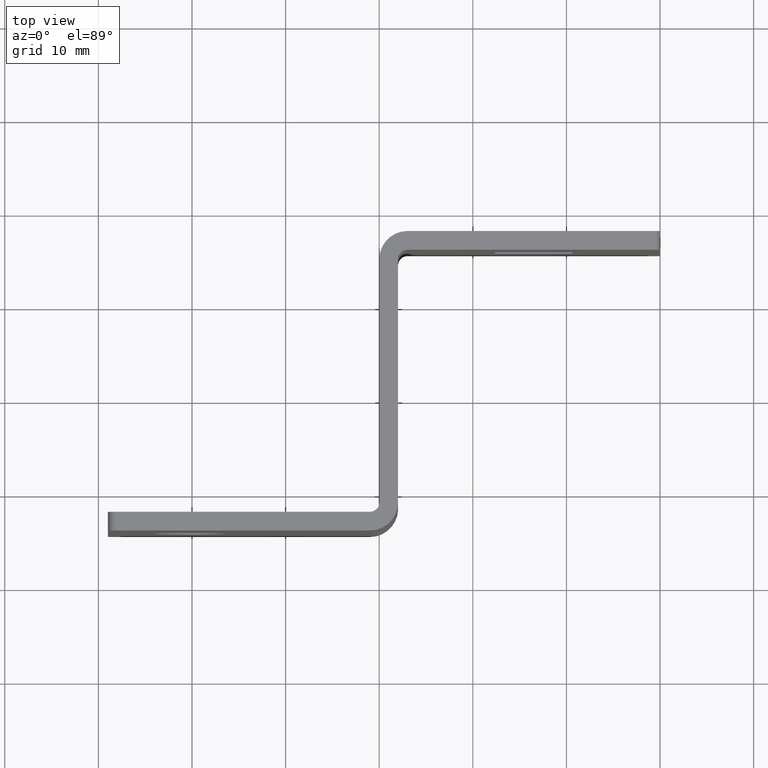
[diagram: clean part render]
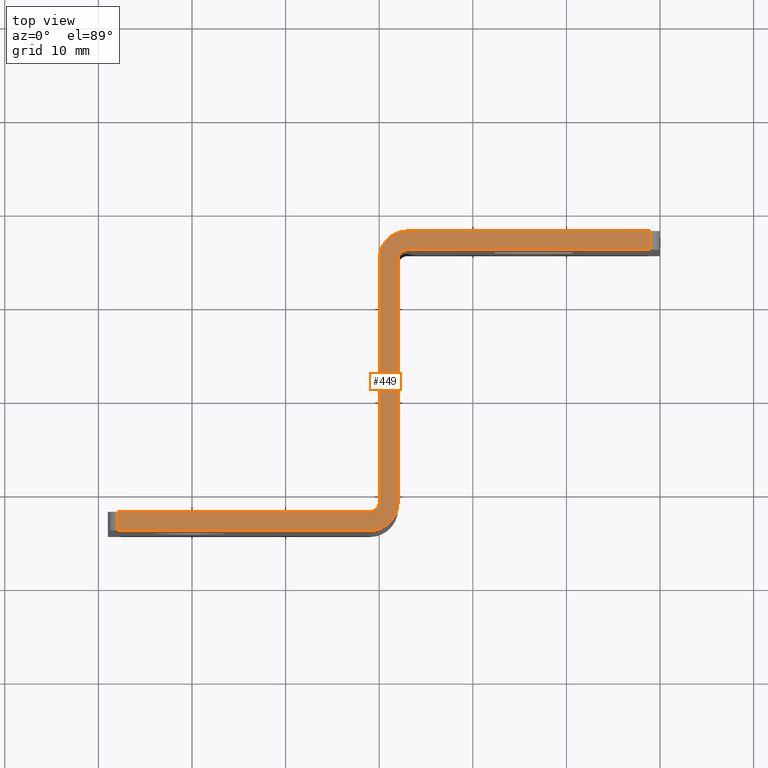
[diagram: same view with one face highlighted and labeled with its STEP entity id]
A machine part, top view. The second image highlights one B-rep face of the part: STEP entity #449.
In plain terms, the highlighted planar face has unit normal (0, 0, 1).
Its self-contained STEP definition (entity closure, byte-faithful):
#27=PLANE('',#492);
#29=LINE('',#633,#73);
#34=LINE('',#646,#78);
#38=LINE('',#660,#82);
#43=LINE('',#672,#87);
#62=LINE('',#719,#106);
#67=LINE('',#737,#111);
#70=LINE('',#744,#114);
#71=LINE('',#746,#115);
#73=VECTOR('',#506,2.);
#78=VECTOR('',#517,27.);
#82=VECTOR('',#531,2.00000000000006);
#87=VECTOR('',#542,26.);
#106=VECTOR('',#583,26.);
#111=VECTOR('',#602,26.);
#114=VECTOR('',#613,26.);
#115=VECTOR('',#616,27.);
#143=FACE_OUTER_BOUND('',#171,.T.);
#171=EDGE_LOOP('',(#395,#396,#397,#398,#399,#400,#401,#402,#403,#404,#405,
#406));
#184=CIRCLE('',#478,1.00000000000001);
#186=CIRCLE('',#482,3.);
#188=CIRCLE('',#485,1.00000000000001);
#190=CIRCLE('',#489,3.);
#194=VERTEX_POINT('',#630);
#195=VERTEX_POINT('',#632);
#200=VERTEX_POINT('',#644);
#204=VERTEX_POINT('',#657);
#205=VERTEX_POINT('',#659);
#209=VERTEX_POINT('',#671);
#223=VERTEX_POINT('',#710);
#224=VERTEX_POINT('',#712);
#226=VERTEX_POINT('',#718);
#228=VERTEX_POINT('',#724);
#230=VERTEX_POINT('',#730);
#232=VERTEX_POINT('',#736);
#236=EDGE_CURVE('',#194,#195,#29,.T.);
#243=EDGE_CURVE('',#194,#200,#34,.T.);
#249=EDGE_CURVE('',#204,#205,#38,.T.);
#255=EDGE_CURVE('',#209,#205,#43,.T.);
#275=EDGE_CURVE('',#224,#223,#184,.T.);
#278=EDGE_CURVE('',#226,#224,#62,.T.);
#281=EDGE_CURVE('',#228,#226,#186,.T.);
#284=EDGE_CURVE('',#230,#209,#188,.T.);
#287=EDGE_CURVE('',#232,#230,#67,.T.);
#290=EDGE_CURVE('',#200,#232,#190,.T.);
#292=EDGE_CURVE('',#204,#228,#70,.T.);
#293=EDGE_CURVE('',#223,#195,#71,.T.);
#395=ORIENTED_EDGE('',*,*,#236,.F.);
#396=ORIENTED_EDGE('',*,*,#243,.T.);
#397=ORIENTED_EDGE('',*,*,#290,.T.);
#398=ORIENTED_EDGE('',*,*,#287,.T.);
#399=ORIENTED_EDGE('',*,*,#284,.T.);
#400=ORIENTED_EDGE('',*,*,#255,.T.);
#401=ORIENTED_EDGE('',*,*,#249,.F.);
#402=ORIENTED_EDGE('',*,*,#292,.T.);
#403=ORIENTED_EDGE('',*,*,#281,.T.);
#404=ORIENTED_EDGE('',*,*,#278,.T.);
#405=ORIENTED_EDGE('',*,*,#275,.T.);
#406=ORIENTED_EDGE('',*,*,#293,.T.);
#449=ADVANCED_FACE('',(#143),#27,.T.);
#478=AXIS2_PLACEMENT_3D('',#713,#577,#578);
#482=AXIS2_PLACEMENT_3D('',#725,#589,#590);
#485=AXIS2_PLACEMENT_3D('',#731,#596,#597);
#489=AXIS2_PLACEMENT_3D('',#741,#608,#609);
#492=AXIS2_PLACEMENT_3D('',#748,#618,#619);
#506=DIRECTION('',(0.,1.,0.));
#517=DIRECTION('',(1.,0.,0.));
#531=DIRECTION('',(0.,-1.,0.));
#542=DIRECTION('',(1.,0.,0.));
#577=DIRECTION('center_axis',(0.,0.,-1.));
#578=DIRECTION('ref_axis',(-1.33226762955018E-14,1.,0.));
#583=DIRECTION('',(0.,-1.,0.));
#589=DIRECTION('center_axis',(0.,0.,1.));
#590=DIRECTION('ref_axis',(-5.92118946466751E-15,1.,0.));
#596=DIRECTION('center_axis',(0.,0.,-1.));
#597=DIRECTION('ref_axis',(1.77635683940026E-14,-1.,0.));
#602=DIRECTION('',(0.,1.,0.));
#608=DIRECTION('center_axis',(0.,0.,1.));
#609=DIRECTION('ref_axis',(0.,-1.,0.));
#613=DIRECTION('',(-1.,0.,0.));
#616=DIRECTION('',(-1.,3.1720657846433E-16,0.));
#618=DIRECTION('center_axis',(0.,0.,1.));
#619=DIRECTION('ref_axis',(1.,0.,0.));
#630=CARTESIAN_POINT('',(12.0125837680259,35.7006300239079,40.));
#632=CARTESIAN_POINT('',(12.0125837680259,37.7006300239079,40.));
#633=CARTESIAN_POINT('',(12.0125837680259,37.2006300239079,40.));
#644=CARTESIAN_POINT('',(39.0125837680259,35.7006300239079,40.));
#646=CARTESIAN_POINT('',(11.0125837680259,35.7006300239079,40.));
#657=CARTESIAN_POINT('',(69.0125837680259,67.700630023908,40.));
#659=CARTESIAN_POINT('',(69.0125837680259,65.7006300239079,40.));
#660=CARTESIAN_POINT('',(69.0125837680259,51.2006300239079,40.));
#671=CARTESIAN_POINT('',(43.0125837680259,65.7006300239079,40.));
#672=CARTESIAN_POINT('',(43.0125837680259,65.7006300239079,40.));
#710=CARTESIAN_POINT('',(39.0125837680259,37.7006300239079,40.));
#712=CARTESIAN_POINT('',(40.0125837680259,38.7006300239079,40.));
#713=CARTESIAN_POINT('Origin',(39.0125837680259,38.7006300239079,40.));
#718=CARTESIAN_POINT('',(40.0125837680259,64.7006300239079,40.));
#719=CARTESIAN_POINT('',(40.0125837680259,64.7006300239079,40.));
#724=CARTESIAN_POINT('',(43.0125837680259,67.7006300239079,40.));
#725=CARTESIAN_POINT('Origin',(43.0125837680259,64.7006300239079,40.));
#730=CARTESIAN_POINT('',(42.0125837680259,64.7006300239079,40.));
#731=CARTESIAN_POINT('Origin',(43.0125837680259,64.7006300239079,40.));
#736=CARTESIAN_POINT('',(42.0125837680259,38.7006300239079,40.));
#737=CARTESIAN_POINT('',(42.0125837680259,38.7006300239079,40.));
#741=CARTESIAN_POINT('Origin',(39.0125837680259,38.7006300239079,40.));
#744=CARTESIAN_POINT('',(70.0125837680259,67.700630023908,40.));
#746=CARTESIAN_POINT('',(39.0125837680259,37.7006300239079,40.));
#748=CARTESIAN_POINT('Origin',(13.3875837680263,36.7006300239079,40.));